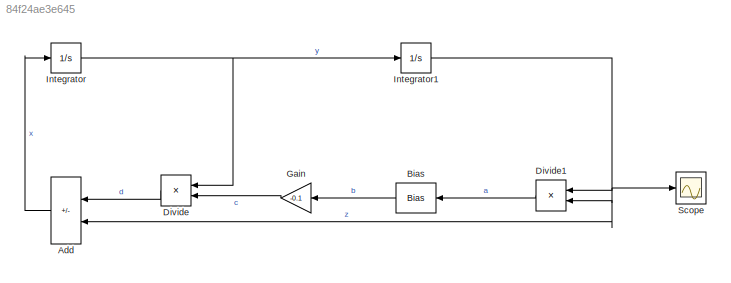
MODEL slx_84f24ae3e645
KIND model
CONFIG AbsTol = auto
CONFIG EnableMultiTasking = off
CONFIG FixedStep = auto
CONFIG MaxStep = auto
CONFIG MinStep = auto
CONFIG RelTol = 1e-3
CONFIG SampleTimeConstraint = Unconstrained
CONFIG Solver = VariableStepAuto
CONFIG SolverName = VariableStepAuto
CONFIG StartTime = 0.0
CONFIG StopTime = 20
BLOCK [Sum] Add
  IconShape = rectangular
  Inputs = +-
  NameLocation = top
  Ports = [2, 1]
BLOCK [Bias] Bias
  Bias = -1
  NameLocation = top
  SaturateOnIntegerOverflow = off
BLOCK [Product] Divide
  Inputs = **
  NameLocation = top
  Ports = [2, 1]
BLOCK [Product] Divide1
  Inputs = **
  NameLocation = top
  Ports = [2, 1]
  SampleTime = 6
BLOCK [Gain] Gain
  Gain = -0.1
  NameLocation = top
  SampleTime = 4
BLOCK [Integrator] Integrator
  InitialCondition = 1
  Ports = [1, 1]
BLOCK [Integrator] Integrator1
  InitialCondition = 1
  Ports = [1, 1]
BLOCK [Scope] Scope
  Floating = off
  NumInputPorts = 1
  Ports = [1]
  ScopeSpecificationString = Simulink.scopes.TimeScopeBlockCfg('CurrentConfiguration', extmgr.ConfigurationSet(extmgr.Configuration('Core','General UI',true),extmgr.Configuration('Core','Source UI',true),extmgr.Configuration('Sources','WiredSimulink',true),extmgr.Configuration('Visuals','Time Domain',true,'SerializedDisplays',{struct('MinYLimReal','-2.43468','MaxYLimReal','2.72895','YLabelReal','','MinYLimMag','0.00000','MaxY...<+1428ch>
LINE Add:1 -> Integrator:1
LINE Bias:1 -> Gain:1
LINE Divide1:1 -> Bias:1
LINE Divide:1 -> Add:1
LINE Gain:1 -> Divide:2
NET Integrator1:1 -> Add:2, Divide1:1, Divide1:2, Scope:1
NET Integrator:1 -> Divide:1, Integrator1:1
note: NET lines group one-source signal fan-out (src -> all destinations, sorted); 1:1 wires keep LINE
